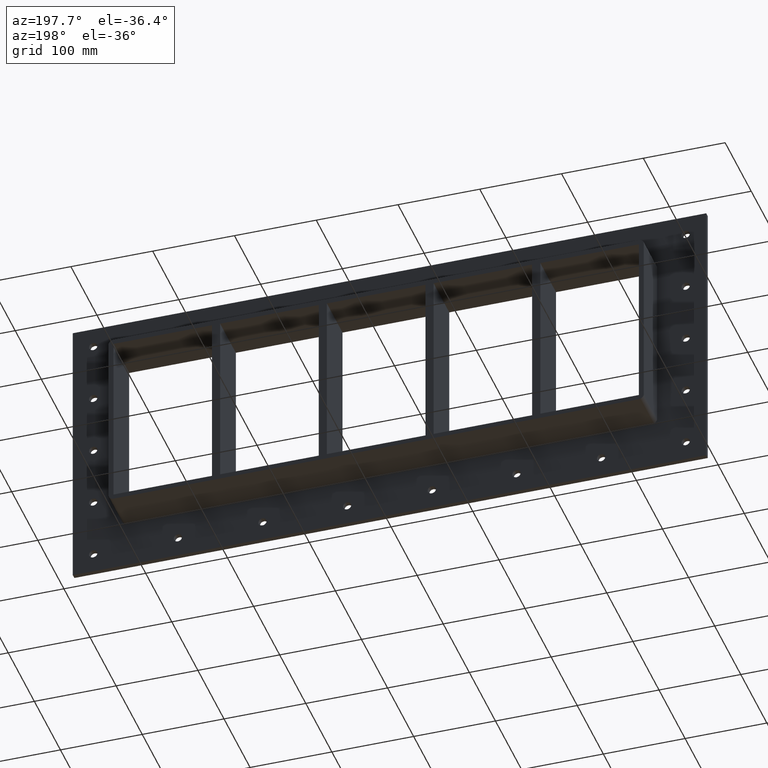
[diagram: clean part render]
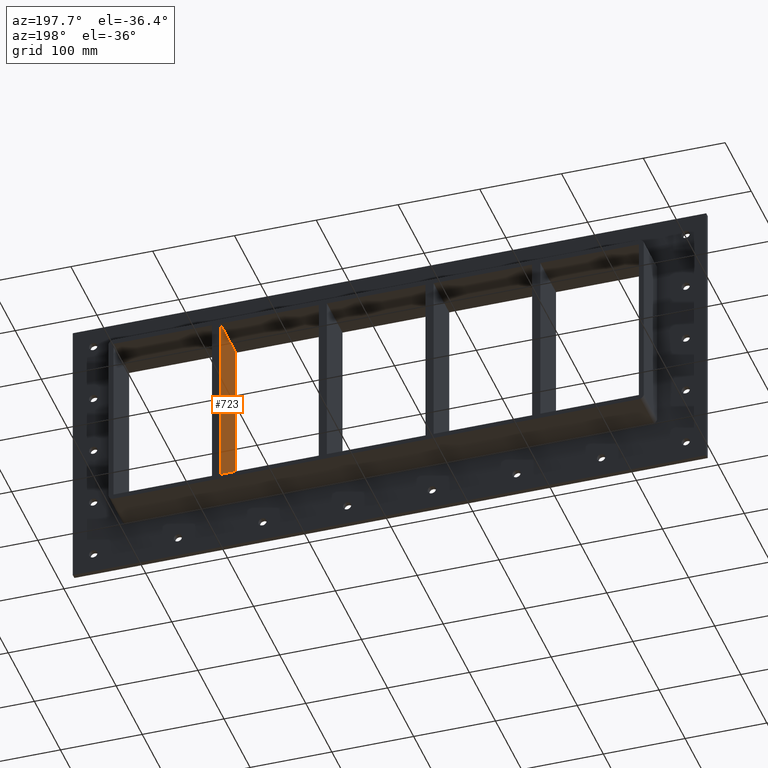
[diagram: same view with one face highlighted and labeled with its STEP entity id]
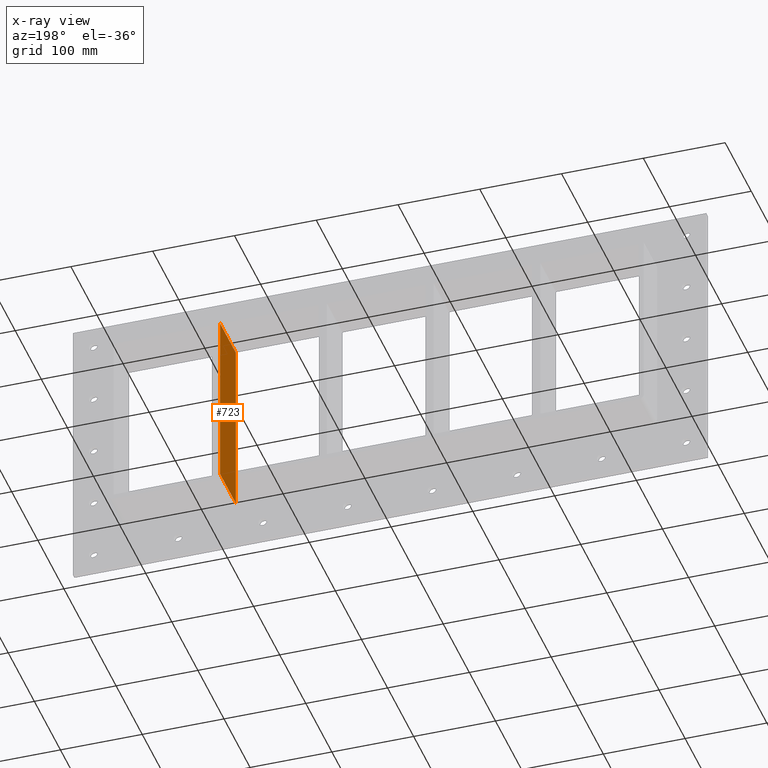
[diagram: x-ray of the same camera — body ghosted, the highlighted face saturated]
A machine part, auxiliary view. The second image highlights one B-rep face of the part: STEP entity #723.
The next image is the same camera in x-ray: the body ghosted, the highlighted face saturated — about 0% of this face is hidden behind the body in this view.
In plain terms, the highlighted planar face has unit normal (-1, 0, 0).
Its self-contained STEP definition (entity closure, byte-faithful):
#684=CARTESIAN_POINT('',(190.74999999999875,-3.0,-108.99999999999999));
#685=DIRECTION('',(-1.0,0.0,0.0));
#686=DIRECTION('',(0.0,0.0,1.0));
#687=AXIS2_PLACEMENT_3D('',#684,#685,#686);
#688=PLANE('',#687);
#689=CARTESIAN_POINT('',(190.74999999999875,-3.0,-108.99999999999999));
#690=VERTEX_POINT('',#689);
#691=CARTESIAN_POINT('',(190.74999999999872,-3.0,109.00000000000003));
#692=VERTEX_POINT('',#691);
#693=CARTESIAN_POINT('',(190.74999999999875,-3.0,-108.99999999999999));
#694=DIRECTION('',(0.0,0.0,1.0));
#695=VECTOR('',#694,218.0);
#696=LINE('',#693,#695);
#697=EDGE_CURVE('',#690,#692,#696,.T.);
#698=ORIENTED_EDGE('',*,*,#697,.T.);
#699=CARTESIAN_POINT('',(190.74999999999872,57.0,109.00000000000003));
#700=VERTEX_POINT('',#699);
#701=CARTESIAN_POINT('',(190.74999999999875,57.000000000000007,109.00000000000003));
#702=DIRECTION('',(0.0,-1.0,0.0));
#703=VECTOR('',#702,60.000000000000007);
#704=LINE('',#701,#703);
#705=EDGE_CURVE('',#700,#692,#704,.T.);
#706=ORIENTED_EDGE('',*,*,#705,.F.);
#707=CARTESIAN_POINT('',(190.74999999999875,57.0,-108.99999999999999));
#708=VERTEX_POINT('',#707);
#709=CARTESIAN_POINT('',(190.74999999999875,57.0,-108.99999999999999));
#710=DIRECTION('',(0.0,0.0,1.0));
#711=VECTOR('',#710,218.0);
#712=LINE('',#709,#711);
#713=EDGE_CURVE('',#708,#700,#712,.T.);
#714=ORIENTED_EDGE('',*,*,#713,.F.);
#715=CARTESIAN_POINT('',(190.74999999999875,-3.0,-108.99999999999999));
#716=DIRECTION('',(0.0,1.0,0.0));
#717=VECTOR('',#716,60.000000000000007);
#718=LINE('',#715,#717);
#719=EDGE_CURVE('',#690,#708,#718,.T.);
#720=ORIENTED_EDGE('',*,*,#719,.F.);
#721=EDGE_LOOP('',(#698,#706,#714,#720));
#722=FACE_OUTER_BOUND('',#721,.T.);
#723=ADVANCED_FACE('',(#722),#688,.T.);